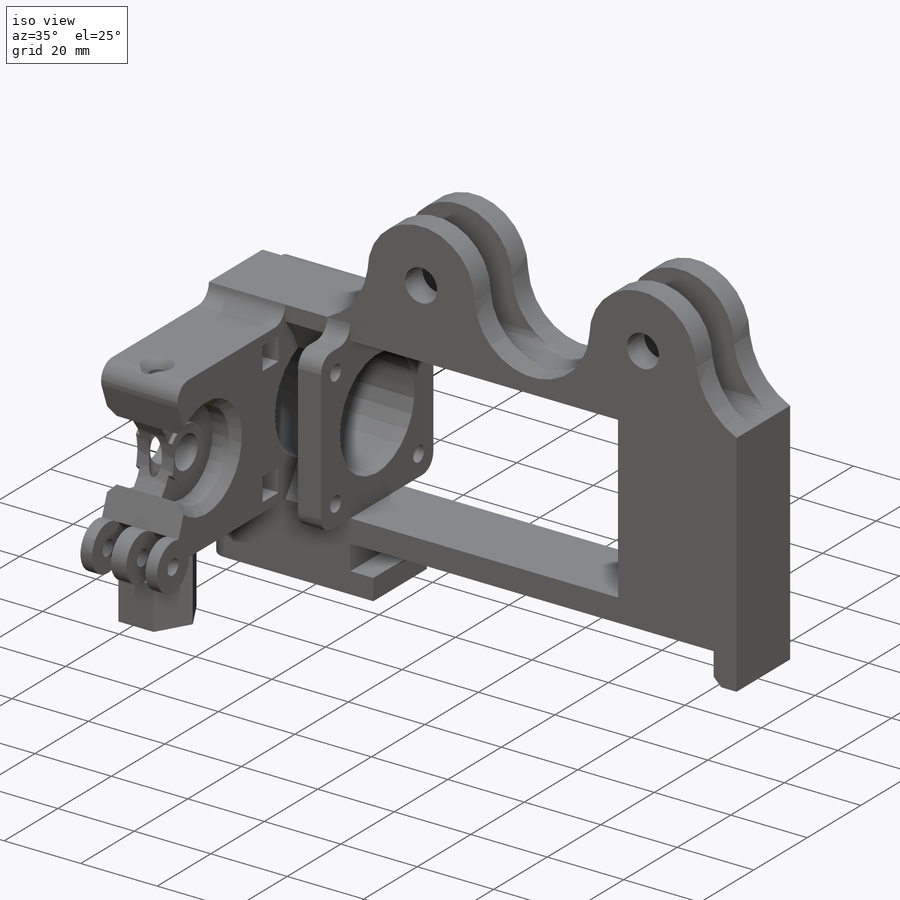
[diagram: iso view]
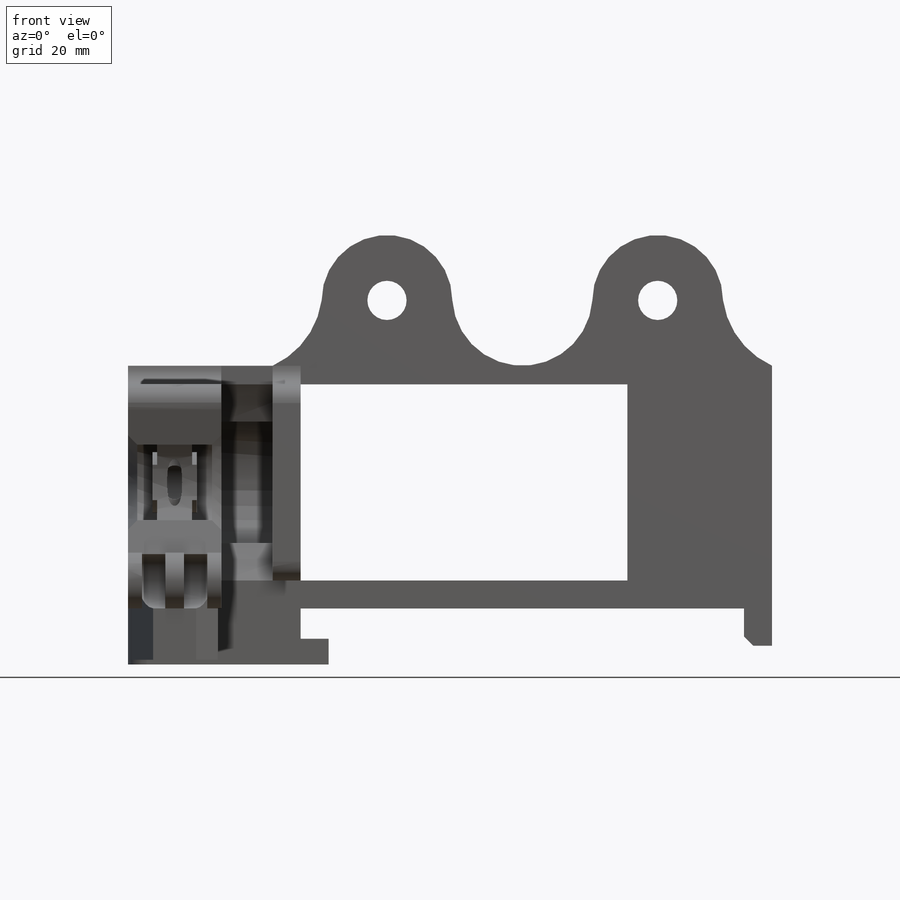
[diagram: front view]
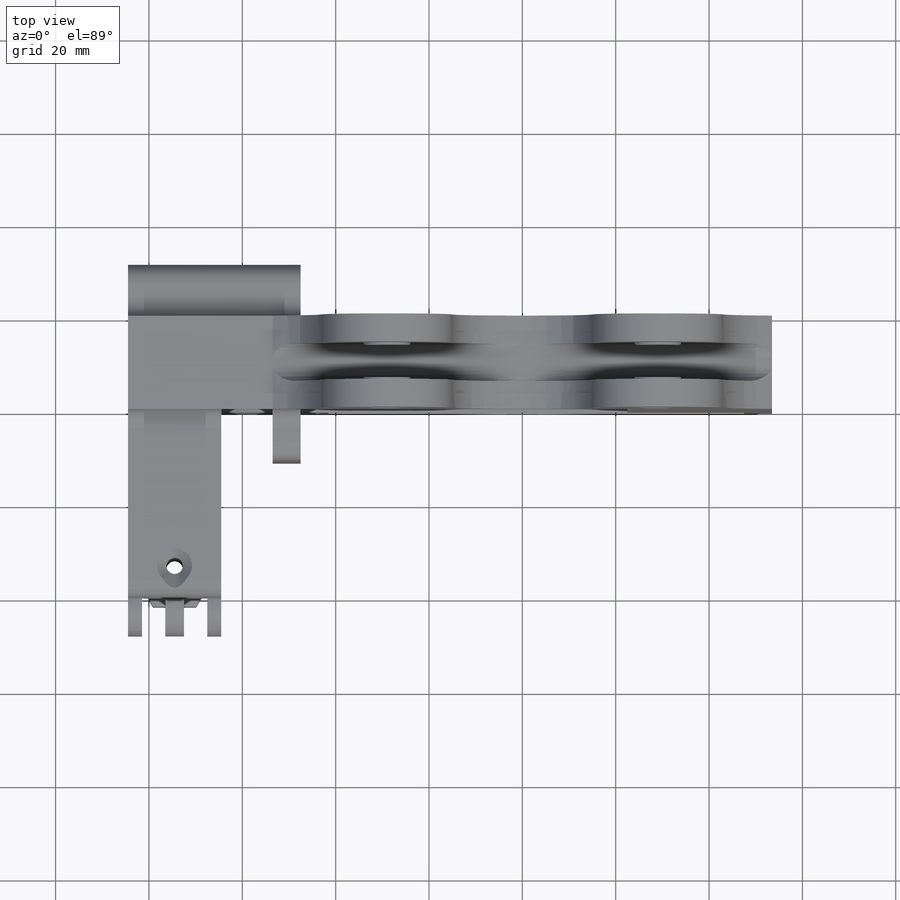
[diagram: top view]
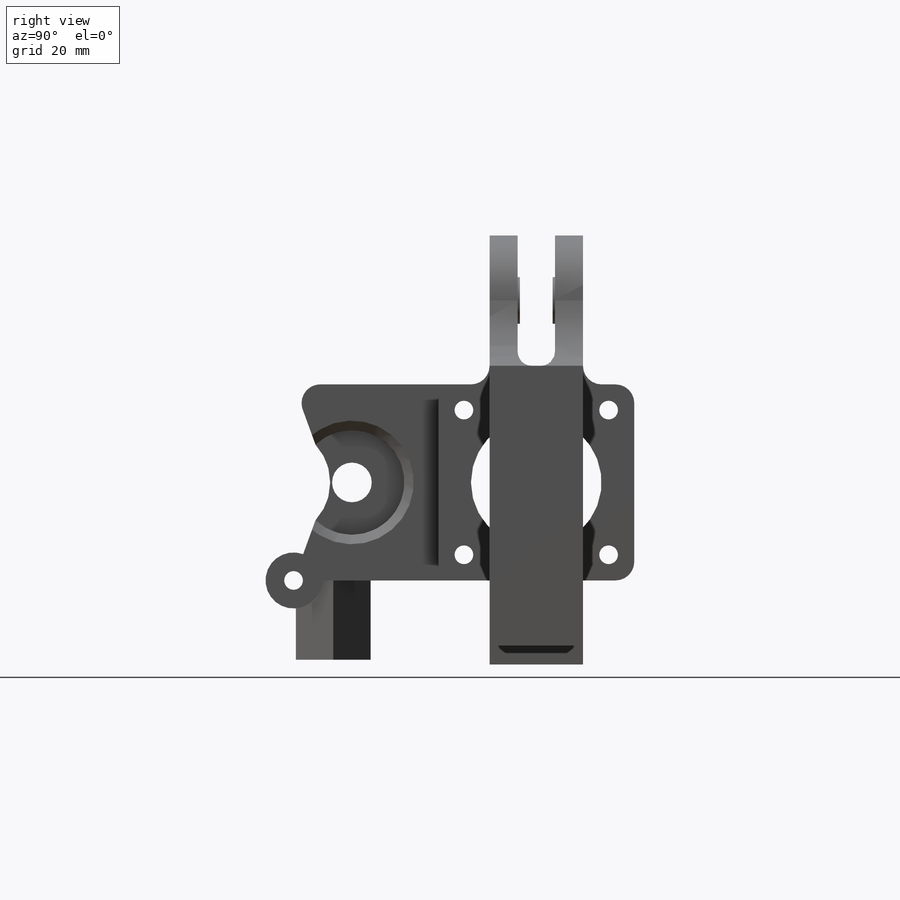
[diagram: right view]
SOLIDWORKS PART (.sldprt)
format: sldprt  version: not decoded by parser v0  size: 886,784 bytes
history: native  units: mm
features: sketch x24, extrude x14, cut_extrude x9, plane x3, chamfer x2, fillet x2, material x1, mirror x1 (+10 scaffold rows collapsed)
feature tree (66):
  scaffold x10  (default folders/planes/origin — collapsed)
  material  "Matériau <non spécifié>"
  plane  "Plan de face"
  plane  "Plan de dessus"
  plane  "Plan de droite"
  sketch  "Esquisse1"  dims[c1.D1=12.0mm c1.D2=6.5mm c1.D3=25.0mm c1.D4=8.0mm c1.D5=8.0mm c1.D6=6.0mm c1.D7=6.0mm c1.D8=6.0mm c1.D9=52.0mm c1.D10=51.0mm c2.D4=50.0mm c2.D3=25.0mm c2.D2=95.0mm c3.D3=8.0mm]
  extrude  "Boss.-Extru.1"  Depth=10mm
  sketch  "Esquisse2"  dims[c1.D1=28.0mm c1.D3=8.4mm c1.D2=14.0mm c2.D3=14.0mm c2.D4=22.0mm c2.D5=58.0mm c3.D4=14.0mm c3.D3=18.0mm c4.D4=18.0mm]
  extrude  "Boss.-Extru.2"  Depth=6mm
  sketch  "Esquisse5"  dims[D1=10.0mm]
  extrude  "Boss.-Extru.3"  Depth=0.5mm
  sketch  "Esquisse6"  dims[D1=8.4mm]
  cut_extrude  "Enlèv. mat.-Extru.3"  [1 undecoded]
  sketch  "Esquisse7"  dims[D1=6.5mm]
  extrude  "Boss.-Extru.4"  Depth=6mm
  sketch  "Esquisse8"  dims[D1=6.0mm D2=6.0mm D3=6.0mm D4=37.0mm]
  mirror  "Symétrie1"
  chamfer  "Chanfrein1"  Distance=2mm Angle=45deg
  fillet  "Congé2"  Radius=3mm
  sketch  "Esquisse13"  dims[D1=70.0mm D2=42.0mm D3=6.0mm D4=6.0mm]
  cut_extrude  "Enlèv. mat.-Extru.12"  [1 undecoded]
  sketch  "Esquisse14"  dims[D1=42.0mm D2=42.0mm D3=18.0mm D4=39.0mm]
  extrude  "Boss.-Extru.6"  [1 undecoded]
  sketch  "Esquisse15"  dims[c1.D3=4.0mm c1.D4=28.0mm c1.D1=31.0mm c1.D2=31.0mm c2.D3=21.0mm]
  cut_extrude  "Enlèv. mat.-Extru.13"  [1 undecoded]
  sketch  "Esquisse17"  dims[D1=66.0mm D2=6.0mm D3=6.0mm]
  extrude  "Boss.-Extru.7"  Depth=31mm
  sketch  "Esquisse18"  dims[c1.D2=22.5mm c1.D5=22.5mm c1.D1=45.0mm c1.D3=34.0mm c1.D4=10.0mm c2.D5=~35.455844mm c2.D1=42.0mm c2.D2=34.0mm c2.D3=39.5mm c2.D6=4.54mm c3.D2=17.0mm c3.D4=12.5mm c4.D4=70.0deg c4.D2=~4.694587mm c5.D2=70.0deg c6.D2=~13.726053mm]
  extrude  "Boss.-Extru.10"  Depth=20mm
  sketch  "Esquisse19"  dims[D1=6.0mm D2=6.0mm]
  cut_extrude  "Enlèv. mat.-Extru.14"  [1 undecoded]
  sketch  "Esquisse22"  dims[D1=8.5mm D2=~9.039177mm]
  extrude  "Boss.-Extru.13"  Depth=7.5mm
  sketch  "Esquisse28"  dims[D1=3.5mm D2=12.0mm]
  extrude  "Boss.-Extru.18"  Depth=3mm
  extrude  "Boss.-Extru.19"  [1 undecoded]
  sketch  "Esquisse28<2>"  dims[D1=3.0mm D19=20.0mm]
  extrude  "Boss.-Extru.20"  [1 undecoded]
  sketch  "Esquisse28<3>"  dims[D1=4.0mm D19=8.0mm]
  sketch  "Esquisse27"  dims[D1=~6.110736mm D2=8.5mm]
  extrude  "Boss.-Extru.17"  Depth=17mm
  sketch  "Esquisse24"  dims[D1=10.0mm]
  cut_extrude  "Enlèv. mat.-Extru.16"  Depth=11mm
  sketch  "Esquisse25"  dims[D1=13.0mm]
  extrude  "Boss.-Extru.15"  Depth=1mm
  sketch  "Esquisse26"  dims[D1=13.0mm]
  extrude  "Boss.-Extru.16"  Depth=1mm
  sketch  "Esquisse29"  dims[D1=4.0mm]
  cut_extrude  "Enlèv. mat.-Extru.18"  [1 undecoded]
  cut_extrude  "Enlèv. mat.-Extru.19"  [1 undecoded]
  sketch  "Esquisse28<5>"  dims[D1=5.0mm D19=3.0mm]
  cut_extrude  "Enlèv. mat.-Extru.20"  [1 undecoded]
  sketch  "Esquisse28<6>"  dims[D1=5.0mm D19=12.0mm]
  sketch  "Esquisse21"  dims[D1=3.5mm D2=8.5mm]
  cut_extrude  "Enlèv. mat.-Extru.15"  [1 undecoded]
  fillet  "Congé3"  Radius=4mm
  chamfer  "Chanfrein3"  Distance=2mm Angle=45deg
decode coverage: 40 of 52 modeling features carry decoded parameters
note: ~ marks probable driven/reference dimensions
note: 11 parameter values undecoded
summary: no parameter record found for 11 features
note: suppression state not decoded; provenance and decode notes live in map.json
